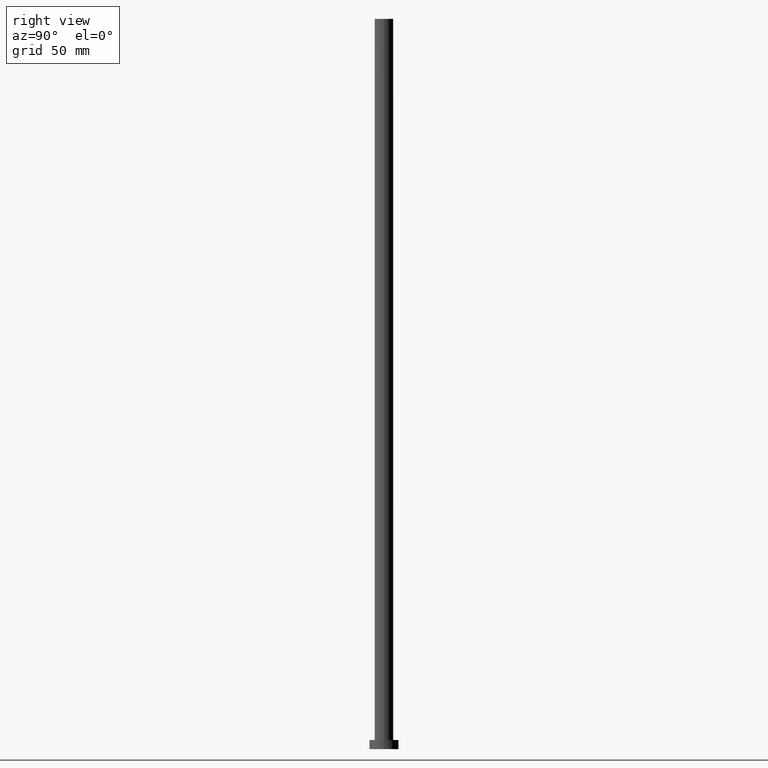
[diagram: clean part render]
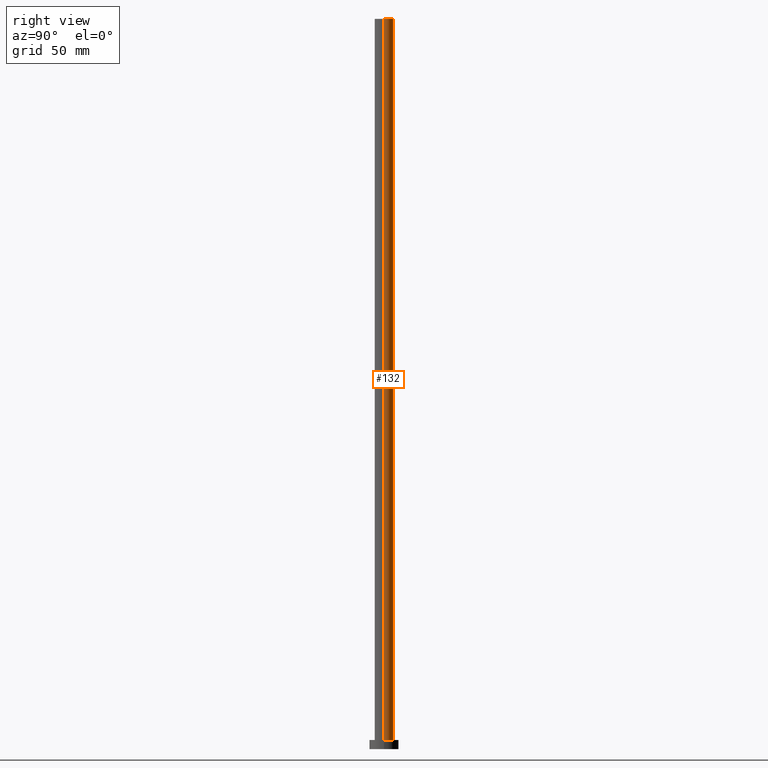
[diagram: same view with one face highlighted and labeled with its STEP entity id]
A machine part, right view. The second image highlights one B-rep face of the part: STEP entity #132.
In plain terms, the highlighted cylindrical surface (edge-blend (fillet) strip) has radius 5.1 mm, axis along (-0, -0, -1).
Its self-contained STEP definition (entity closure, byte-faithful):
#7 = DIRECTION ( 'NONE',  ( 0.000000000000000000, 0.000000000000000000, 1.000000000000000000 ) ) ;
#9 = DIRECTION ( 'NONE',  ( -0.000000000000000000, -0.000000000000000000, -1.000000000000000000 ) ) ;
#20 = AXIS2_PLACEMENT_3D ( 'NONE', #67, #29, #30 ) ;
#26 = VECTOR ( 'NONE', #9, 1000.000000000000000 ) ;
#29 = DIRECTION ( 'NONE',  ( -0.000000000000000000, -0.000000000000000000, -1.000000000000000000 ) ) ;
#30 = DIRECTION ( 'NONE',  ( -1.000000000000000000, 0.000000000000000000, 0.000000000000000000 ) ) ;
#32 = LINE ( 'NONE', #142, #26 ) ;
#42 = ORIENTED_EDGE ( 'NONE', *, *, #168, .F. ) ;
#48 = DIRECTION ( 'NONE',  ( -0.000000000000000000, -0.000000000000000000, -1.000000000000000000 ) ) ;
#51 = CIRCLE ( 'NONE', #195, 5.099999999999999645 ) ;
#58 = VERTEX_POINT ( 'NONE', #158 ) ;
#62 = VERTEX_POINT ( 'NONE', #93 ) ;
#64 = ORIENTED_EDGE ( 'NONE', *, *, #146, .T. ) ;
#67 = CARTESIAN_POINT ( 'NONE',  ( 0.000000000000000000, 0.000000000000000000, 400.0000000000000000 ) ) ;
#81 = ORIENTED_EDGE ( 'NONE', *, *, #210, .F. ) ;
#83 = CARTESIAN_POINT ( 'NONE',  ( 0.000000000000000000, 0.000000000000000000, 5.000000000000000000 ) ) ;
#85 = DIRECTION ( 'NONE',  ( 0.000000000000000000, 0.000000000000000000, 1.000000000000000000 ) ) ;
#86 = CARTESIAN_POINT ( 'NONE',  ( 0.000000000000000000, 0.000000000000000000, 400.0000000000000000 ) ) ;
#87 = CARTESIAN_POINT ( 'NONE',  ( 5.099999999999999645, 6.245698675651499853E-16, 5.000000000000000000 ) ) ;
#93 = CARTESIAN_POINT ( 'NONE',  ( -5.099999999999999645, 0.000000000000000000, 400.0000000000000000 ) ) ;
#104 = CYLINDRICAL_SURFACE ( 'NONE', #20, 5.099999999999999645 ) ;
#112 = ORIENTED_EDGE ( 'NONE', *, *, #149, .T. ) ;
#119 = CARTESIAN_POINT ( 'NONE',  ( -5.099999999999999645, 0.000000000000000000, 5.000000000000000000 ) ) ;
#132 = ADVANCED_FACE ( 'NONE', ( #240 ), #104, .T. ) ;
#142 = CARTESIAN_POINT ( 'NONE',  ( -5.099999999999999645, 0.000000000000000000, 400.0000000000000000 ) ) ;
#146 = EDGE_CURVE ( 'NONE', #255, #196, #204, .T. ) ;
#149 = EDGE_CURVE ( 'NONE', #58, #255, #163, .T. ) ;
#158 = CARTESIAN_POINT ( 'NONE',  ( 5.099999999999999645, 6.245698675651499853E-16, 400.0000000000000000 ) ) ;
#160 = VECTOR ( 'NONE', #48, 1000.000000000000000 ) ;
#163 = LINE ( 'NONE', #242, #160 ) ;
#168 = EDGE_CURVE ( 'NONE', #62, #196, #32, .T. ) ;
#186 = DIRECTION ( 'NONE',  ( 1.000000000000000000, 0.000000000000000000, 0.000000000000000000 ) ) ;
#195 = AXIS2_PLACEMENT_3D ( 'NONE', #86, #85, #186 ) ;
#196 = VERTEX_POINT ( 'NONE', #119 ) ;
#204 = CIRCLE ( 'NONE', #211, 5.099999999999999645 ) ;
#210 = EDGE_CURVE ( 'NONE', #58, #62, #51, .T. ) ;
#211 = AXIS2_PLACEMENT_3D ( 'NONE', #83, #7, #220 ) ;
#220 = DIRECTION ( 'NONE',  ( 1.000000000000000000, 0.000000000000000000, 0.000000000000000000 ) ) ;
#232 = EDGE_LOOP ( 'NONE', ( #81, #112, #64, #42 ) ) ;
#240 = FACE_OUTER_BOUND ( 'NONE', #232, .T. ) ;
#242 = CARTESIAN_POINT ( 'NONE',  ( 5.099999999999999645, 6.245698675651499853E-16, 400.0000000000000000 ) ) ;
#255 = VERTEX_POINT ( 'NONE', #87 ) ;